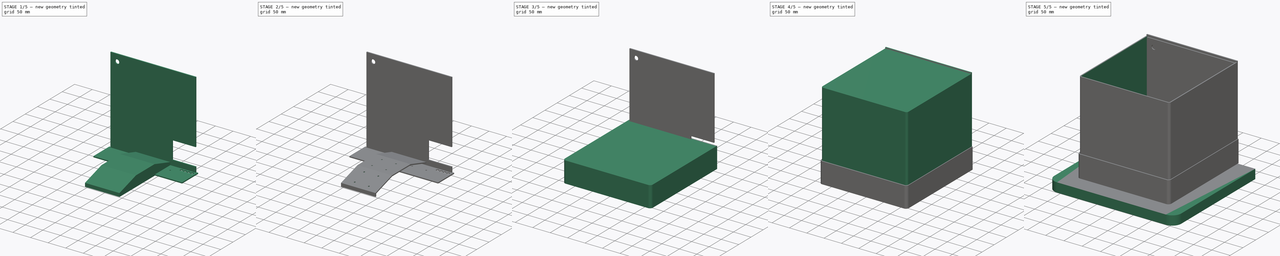
[diagram: build sequence overview — one tinted view per stage of 5, left to right]
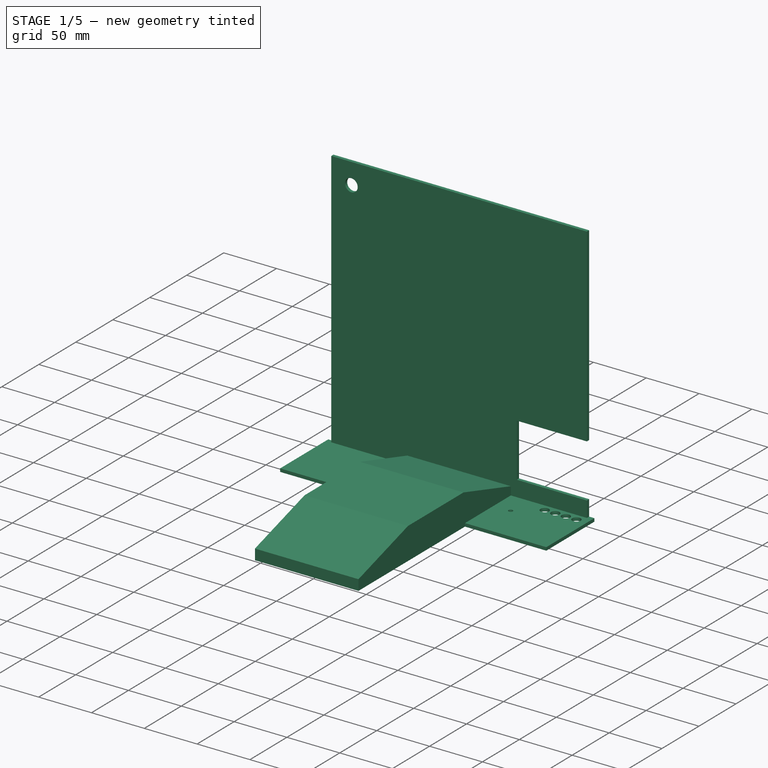
[diagram: stage 1 of 5 — iso view after this stage's code; geometry added in this stage tinted green]
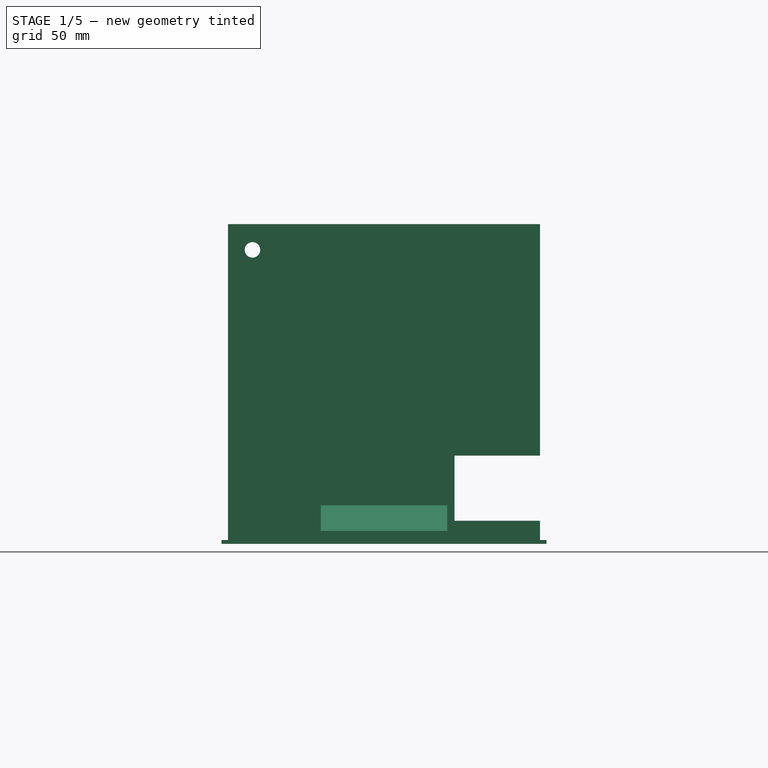
[diagram: stage 1 of 5 — front view after this stage's code; geometry added in this stage tinted green]
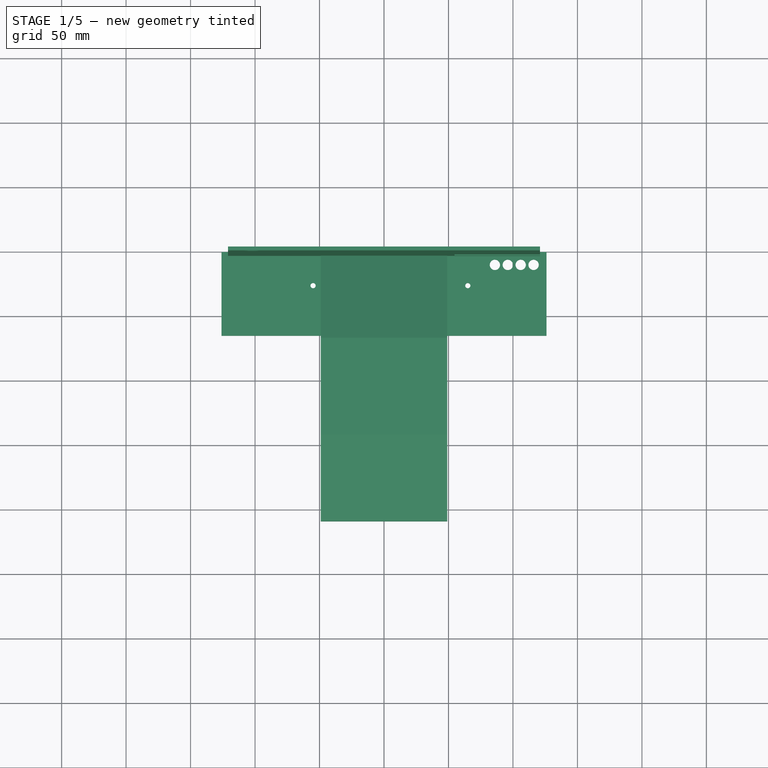
[diagram: stage 1 of 5 — top view after this stage's code; geometry added in this stage tinted green]
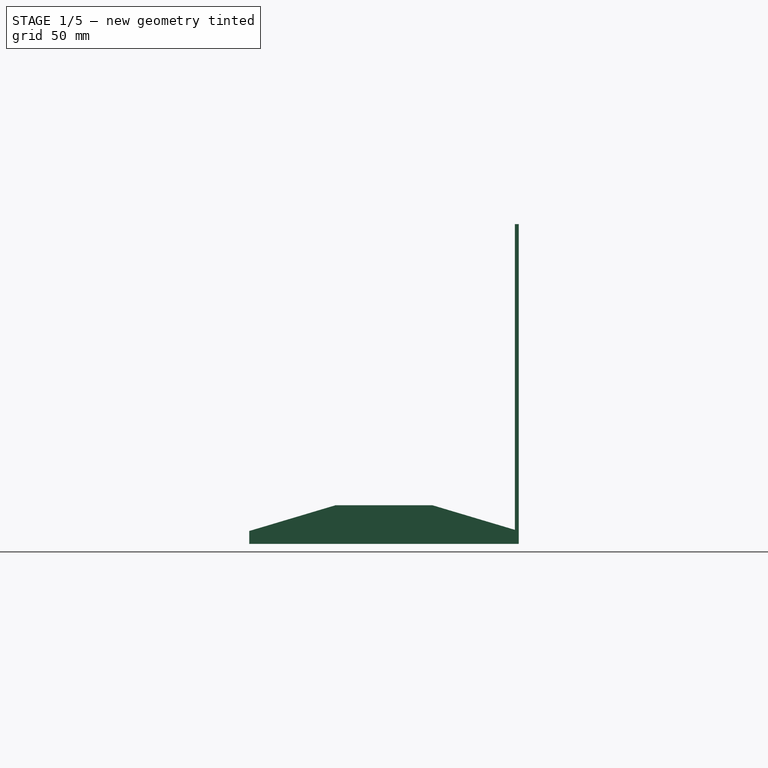
[diagram: stage 1 of 5 — right view after this stage's code; geometry added in this stage tinted green]
FCSTD DOCUMENT  (FreeCAD 0.17R13541 (Git))
Label: Acuario Libre
License: All rights reserved
LicenseURL: http://en.wikipedia.org/wiki/All_rights_reserved
objects: Sketcher::SketchObject×16, PartDesign::Body×14, App::Part×14, PartDesign::Pad×10, App::DocumentObjectGroup×8, PartDesign::Pocket×6, PartDesign::Fillet×4, PartDesign::Thickness×3, Spreadsheet::Sheet×1
note: 69 computed .brp shape members not serialized (recipe doc carries the construction recipe); baked Part::Feature solids carry a one-line shape summary decoded from their .brp

FEATURE [PartDesign::Body] Body005  label="Acuario Tapa trasera001"
  Group = -> [Sketch003,Pad003]
  Origin = -> Origin014
  Tip = -> Pad003
FEATURE [App::Part] Part004  label="Acuario Tapa trasera"
  Group = -> [Body005]
  License = CC BY 3.0
  LicenseURL = http://creativecommons.org/licenses/by/3.0/
  Origin = -> Origin006
  expr: Placement.Base.y = 0
FEATURE [Sketcher::SketchObject] Sketch004
  MapMode = 5
  Placement = pos=(0,0,0) rot=(1,0,0;1.5708rad)
  Support = -> [XZ_Plane013]
  expr: Constraints[11] = Spreadsheet.acuariofrente - 2 * Spreadsheet.acuarioespesor
  expr: Constraints[10] = Spreadsheet.acuarioalto - 2
  sketch-geometry (4):
    g0: LineSegment StartX=-121 StartY=248 StartZ=0 EndX=121 EndY=248 EndZ=0
    g1: LineSegment StartX=121 StartY=248 StartZ=0 EndX=121 EndY=0 EndZ=0
    g2: LineSegment StartX=121 StartY=0 StartZ=0 EndX=-121 EndY=0 EndZ=0
    g3: LineSegment StartX=-121 StartY=0 StartZ=0 EndX=-121 EndY=248 EndZ=0
  constraints (12):
    c: Coincident(g0,g1)
    c: Coincident(g1,g2)
    c: Coincident(g2,g3)
    c: Coincident(g3,g0)
    c: Horizontal(g0)
    c: Horizontal(g2)
    c: Vertical(g1)
    c: Vertical(g3)
    c: PointOnObject(g1,g-1)
    c: Symmetric(g0,g0,g-2)
    c: DistanceY(g3,g3) = 248
    c: DistanceX(g0,g0) = 242
FEATURE [PartDesign::Pad] Pad004
  Length = 3
  Length2 = 100
  Placement = pos=(0,0,0) rot=(1,0,0;1.5708rad)
  Profile = -> Sketch004
  Refine = true
  Type = 0
  expr: Length = Spreadsheet.acuarioespesor
FEATURE [PartDesign::Body] Body011  label="Tapa trasera001"
  Group = -> [Sketch007,Pad007]
  Origin = -> Origin025
  Tip = -> Pad007
FEATURE [App::Part] Part011  label="Tapa trasera"
  Group = -> [Body011]
  License = CC BY 3.0
  LicenseURL = http://creativecommons.org/licenses/by/3.0/
  Origin = -> Origin020
  Placement = pos=(0,0,238) rot=(0,0,1;0rad)
  expr: Placement.Base.z = Spreadsheet.acuarioalto - Spreadsheet.tapapestana
FEATURE [Sketcher::SketchObject] Sketch009
  MapMode = 5
  Placement = pos=(0,0,0) rot=(0.57735,0.57735,0.57735;2.0944rad)
  Support = -> [YZ_Plane027]
  expr: Constraints[16] = Spreadsheet.filtrolargo + 25
  expr: Constraints[15] = Spreadsheet.tapaprofundidad - Spreadsheet.acuariofiltro
  sketch-geometry (6):
    g0: LineSegment StartX=0 StartY=0 StartZ=0 EndX=-209 EndY=0 EndZ=0
    g1: LineSegment StartX=-209 StartY=0 StartZ=0 EndX=-209 EndY=10 EndZ=0
    g2: LineSegment StartX=-209 StartY=10 StartZ=0 EndX=-142 EndY=30 EndZ=0
    g3: LineSegment StartX=-142 StartY=30 StartZ=0 EndX=-67 EndY=30 EndZ=0
    g4: LineSegment StartX=-67 StartY=30 StartZ=0 EndX=0 EndY=10 EndZ=0
    g5: LineSegment StartX=0 StartY=10 StartZ=0 EndX=0 EndY=0 EndZ=0
  constraints (17):
    c: Coincident(g-1,g0)
    c: PointOnObject(g0,g-1)
    c: Coincident(g0,g1)
    c: Vertical(g1)
    c: Coincident(g1,g2)
    c: Coincident(g2,g3)
    c: Horizontal(g3)
    c: Coincident(g3,g4)
    c: Coincident(g4,g5)
    c: Coincident(g5,g0)
    c: Vertical(g5)
    c: Equal(g4,g2)
    c: Equal(g1,g5)
    c: DistanceY(g1,g1) = 10
    c: DistanceY(g0,g2) = 30
    c: DistanceX(g0,g0) = 209
    c: DistanceX(g3,g3) = 75
FEATURE [PartDesign::Pad] Pad009
  Length = 98
  Length2 = 100
  Midplane = true
  Placement = pos=(0,0,0) rot=(0.57735,0.57735,0.57735;2.0944rad)
  Profile = -> Sketch009
  Refine = true
  Type = 0
  expr: Length = Spreadsheet.luzancho
FEATURE [PartDesign::Body] Body013
  Group = -> [Sketch009,Pad009,Thickness002,Sketch010,Pocket,Sketch011,Pocket001,Sketch012,Pocket002,Sketch013,Pocket003]
  Origin = -> Origin027
  Tip = -> Pocket003
FEATURE [App::Part] Part012  label="Tapa soporte luz"
  Group = -> [Body013]
  License = CC BY 3.0
  LicenseURL = http://creativecommons.org/licenses/by/3.0/
  Origin = -> Origin021
  Placement = pos=(0,-59,298) rot=(0,0,1;0rad)
  expr: Placement.Base.y = -Spreadsheet.acuariofiltro
  expr: Placement.Base.z = Spreadsheet.acuarioalto + Spreadsheet.tapaalto - Spreadsheet.tapapestana
FEATURE [Sketcher::SketchObject] Sketch016
  MapMode = 5
  Support = -> [XY_Plane026]
  expr: Constraints[11] = Spreadsheet.acuariofiltro + 2 * Spreadsheet.tapaespesor
  expr: Constraints[9] = Spreadsheet.tapafrente
  sketch-geometry (4):
    g0: LineSegment StartX=-126 StartY=0 StartZ=0 EndX=126 EndY=0 EndZ=0
    g1: LineSegment StartX=126 StartY=0 StartZ=0 EndX=126 EndY=-65 EndZ=0
    g2: LineSegment StartX=126 StartY=-65 StartZ=0 EndX=-126 EndY=-65 EndZ=0
    g3: LineSegment StartX=-126 StartY=-65 StartZ=0 EndX=-126 EndY=0 EndZ=0
  constraints (12):
    c: Coincident(g0,g1)
    c: Coincident(g1,g2)
    c: Coincident(g2,g3)
    c: Coincident(g3,g0)
    c: Horizontal(g0)
    c: Horizontal(g2)
    c: Vertical(g1)
    c: Vertical(g3)
    c: PointOnObject(g0,g-1)
    c: DistanceX(g0,g0) = 252
    c: Symmetric(g0,g0,g-2)
    c: DistanceY(g3,g3) = 65
FEATURE [PartDesign::Pad] Pad010
  Length = 3
  Length2 = 100
  Profile = -> Sketch016
  Refine = true
  Type = 0
  expr: Length = Spreadsheet.tapaespesor
FEATURE [Sketcher::SketchObject] Sketch017
  ExternalGeometry = -> [Pad010]
  MapMode = 5
  Placement = pos=(0,0,3) rot=(0,0,1;0rad)
  Support = -> [Pad010]
  expr: Constraints[85] = Spreadsheet.tapafrente / 2 - 40
  expr: Constraints[67] = Spreadsheet.filtrodiabarrenos / 2
  expr: Constraints[43] = Spreadsheet.filtrolargo / 2
  expr: Constraints[42] = Spreadsheet.filtrodistanciabarrenos
  sketch-geometry (35):
    g0: LineSegment [constr] StartX=-55 StartY=13.9 StartZ=0 EndX=-15 EndY=13.9 EndZ=0
    g1: LineSegment [constr] StartX=-15 StartY=13.9 StartZ=0 EndX=-15 EndY=-26.1 EndZ=0
    g2: LineSegment [constr] StartX=-15 StartY=-26.1 StartZ=0 EndX=-55 EndY=-26.1 EndZ=0
    g3: LineSegment [constr] StartX=-55 StartY=-26.1 StartZ=0 EndX=-55 EndY=13.9 EndZ=0
    g4: LineSegment [constr] StartX=-20 StartY=13.9 StartZ=0 EndX=20 EndY=13.9 EndZ=0
    g5: LineSegment [constr] StartX=20 StartY=13.9 StartZ=0 EndX=20 EndY=-26.1 EndZ=0
    g6: LineSegment [constr] StartX=20 StartY=-26.1 StartZ=0 EndX=-20 EndY=-26.1 EndZ=0
    g7: LineSegment [constr] StartX=-20 StartY=-26.1 StartZ=0 EndX=-20 EndY=13.9 EndZ=0
    g8: LineSegment [constr] StartX=25 StartY=13.9 StartZ=0 EndX=65 EndY=13.9 EndZ=0
    g9: LineSegment [constr] StartX=65 StartY=13.9 StartZ=0 EndX=65 EndY=-26.1 EndZ=0
    g10: LineSegment [constr] StartX=65 StartY=-26.1 StartZ=0 EndX=25 EndY=-26.1 EndZ=0
    g11: LineSegment [constr] StartX=25 StartY=-26.1 StartZ=0 EndX=25 EndY=13.9 EndZ=0
    g12: LineSegment [constr] StartX=126 StartY=-65 StartZ=0 EndX=65 EndY=-26.1 EndZ=0
    g13: LineSegment [constr] StartX=-55 StartY=13.9 StartZ=0 EndX=-126 EndY=0 EndZ=0
    g14: LineSegment [constr] StartX=-15 StartY=13.9 StartZ=0 EndX=-20 EndY=13.9 EndZ=0
    g15: LineSegment [constr] StartX=20 StartY=13.9 StartZ=0 EndX=25 EndY=13.9 EndZ=0
    g16: Circle CenterX=-55 CenterY=13.9 CenterZ=0 NormalX=0 NormalY=0 NormalZ=1 AngleXU=0 Radius=2
    g17: Circle CenterX=-55 CenterY=-26.1 CenterZ=0 NormalX=0 NormalY=0 NormalZ=1 AngleXU=0 Radius=2
    g18: Circle CenterX=-15 CenterY=-26.1 CenterZ=0 NormalX=0 NormalY=0 NormalZ=1 AngleXU=0 Radius=2
    g19: Circle CenterX=-20 CenterY=-26.1 CenterZ=0 NormalX=0 NormalY=0 NormalZ=1 AngleXU=0 Radius=2
    g20: Circle CenterX=20 CenterY=-26.1 CenterZ=0 NormalX=0 NormalY=0 NormalZ=1 AngleXU=0 Radius=2
    g21: Circle CenterX=25 CenterY=-26.1 CenterZ=0 NormalX=0 NormalY=0 NormalZ=1 AngleXU=0 Radius=2
    g22: Circle CenterX=65 CenterY=-26.1 CenterZ=0 NormalX=0 NormalY=0 NormalZ=1 AngleXU=0 Radius=2
    g23: Circle CenterX=65 CenterY=13.9 CenterZ=0 NormalX=0 NormalY=0 NormalZ=1 AngleXU=0 Radius=2
    g24: Circle CenterX=25 CenterY=13.9 CenterZ=0 NormalX=0 NormalY=0 NormalZ=1 AngleXU=0 Radius=2
    g25: Circle CenterX=20 CenterY=13.9 CenterZ=0 NormalX=0 NormalY=0 NormalZ=1 AngleXU=0 Radius=2
    g26: Circle CenterX=-20 CenterY=13.9 CenterZ=0 NormalX=0 NormalY=0 NormalZ=1 AngleXU=0 Radius=2
    g27: Circle CenterX=-15 CenterY=13.9 CenterZ=0 NormalX=0 NormalY=0 NormalZ=1 AngleXU=0 Radius=2
    g28: Circle CenterX=86 CenterY=-10 CenterZ=0 NormalX=0 NormalY=0 NormalZ=1 AngleXU=0 Radius=4
    g29: Circle CenterX=96 CenterY=-10 CenterZ=0 NormalX=0 NormalY=0 NormalZ=1 AngleXU=0 Radius=4
    g30: Circle CenterX=106 CenterY=-10 CenterZ=0 NormalX=0 NormalY=0 NormalZ=1 AngleXU=0 Radius=4
    g31: Circle CenterX=116 CenterY=-10 CenterZ=0 NormalX=0 NormalY=0 NormalZ=1 AngleXU=0 Radius=4
    g32: LineSegment [constr] StartX=86 StartY=-10 StartZ=0 EndX=96 EndY=-10 EndZ=0
    g33: LineSegment [constr] StartX=96 StartY=-10 StartZ=0 EndX=106 EndY=-10 EndZ=0
    g34: LineSegment [constr] StartX=106 StartY=-10 StartZ=0 EndX=116 EndY=-10 EndZ=0
  constraints (86):
    c: Coincident(g0,g1)
    c: Coincident(g1,g2)
    c: Coincident(g2,g3)
    c: Coincident(g3,g0)
    c: Horizontal(g0)
    c: Horizontal(g2)
    c: Vertical(g1)
    c: Vertical(g3)
    c: Coincident(g4,g5)
    c: Coincident(g5,g6)
    c: Coincident(g6,g7)
    c: Coincident(g7,g4)
    c: Horizontal(g4)
    c: Horizontal(g6)
    c: Vertical(g5)
    c: Vertical(g7)
    c: Coincident(g8,g9)
    c: Coincident(g9,g10)
    c: Coincident(g10,g11)
    c: Coincident(g11,g8)
    c: Horizontal(g8)
    c: Horizontal(g10)
    c: Vertical(g9)
    c: Vertical(g11)
    c: Coincident(g12,g-4)
    c: Coincident(g12,g9)
    c: Coincident(g13,g0)
    c: Coincident(g13,g-3)
    c: Coincident(g14,g0)
    c: Coincident(g14,g4)
    c: Coincident(g15,g4)
    c: Coincident(g15,g8)
    c: Equal(g12,g13)
    c: Equal(g8,g4)
    c: Equal(g4,g0)
    c: Horizontal(g14)
    c: Horizontal(g15)
    c: Equal(g14,g15)
    c: Symmetric(g4,g4,g-2)
    c: Equal(g11,g7)
    c: Equal(g7,g3)
    c: Equal(g0,g3)
    c: DistanceX(g0,g0) = 40
    c: DistanceX(g-1,g8) = 25
    c: Coincident(g16,g0)
    c: Coincident(g17,g2)
    c: Coincident(g18,g1)
    c: Coincident(g19,g6)
    c: Coincident(g20,g5)
    c: Coincident(g21,g10)
    c: Coincident(g22,g9)
    c: Coincident(g23,g8)
    c: Coincident(g24,g8)
    c: Coincident(g25,g4)
    c: Coincident(g26,g4)
    c: Coincident(g27,g0)
    c: Equal(g20,g21)
    c: Equal(g21,g22)
    c: Equal(g22,g23)
    c: Equal(g23,g24)
    c: Equal(g24,g25)
    c: Equal(g25,g26)
    c: Equal(g26,g27)
    c: Equal(g27,g16)
    c: Equal(g16,g17)
    c: Equal(g17,g18)
    c: Equal(g18,g19)
    c: Radius(g16) = 2
    c: Coincident(g32,g28)
    c: Coincident(g32,g29)
    c: Horizontal(g32)
    c: Coincident(g32,g33)
    c: Coincident(g33,g30)
    c: Horizontal(g33)
    c: Coincident(g33,g34)
    c: Coincident(g34,g31)
    c: Equal(g34,g33)
    c: Equal(g33,g32)
    c: Horizontal(g34)
    c: Equal(g31,g30)
    c: Equal(g30,g29)
    c: Equal(g29,g28)
    c: Radius(g28) = 4
    c: DistanceX(g32,g32) = 10
    c: DistanceY(g28,g-1) = 10
    c: DistanceX(g-1,g28) = 86
FEATURE [PartDesign::Pocket] Pocket006
  BaseFeature = -> Pad010
  Length = 5
  Length2 = 100
  Profile = -> Sketch017
  Refine = true
  Type = 1
FEATURE [PartDesign::Body] Body012  label="Tapa soporte luz filtro001"
  Group = -> [Sketch016,Pad010,Sketch017,Pocket006]
  Origin = -> Origin026
  Tip = -> Pocket006
FEATURE [App::Part] Part013  label="Tapa soporte luz filtro"
  Group = -> [Body012]
  License = CC BY 3.0
  LicenseURL = http://creativecommons.org/licenses/by/3.0/
  Origin = -> Origin022
  Placement = pos=(0,3,298) rot=(0,0,1;0rad)
  expr: Placement.Base.y = Spreadsheet.tapaespesor
  expr: Placement.Base.z = Spreadsheet.acuarioalto + Spreadsheet.tapaalto - Spreadsheet.tapapestana
FEATURE [App::DocumentObjectGroup] Group003  label="Tapa Acrilico"
  Group = -> [Part009,Part010,Part011,Part012,Part013]
FEATURE [Sketcher::SketchObject] Sketch018
  MapMode = 5
  Placement = pos=(0,-3,0) rot=(1,0,0;1.5708rad)
  Support = -> [Pad004]
  expr: Constraints[81] = Spreadsheet.acuarioalto - 22
  expr: Constraints[80] = Spreadsheet.acuariofrente / 2 - 22
  sketch-geometry (41):
    g0: Circle CenterX=-102 CenterY=228 CenterZ=0 NormalX=0 NormalY=0 NormalZ=1 AngleXU=0 Radius=6
    g1: LineSegment StartX=156.805 StartY=171.992 StartZ=0 EndX=165.969 EndY=171.992 EndZ=0
    g2: LineSegment StartX=165.969 StartY=171.992 StartZ=0 EndX=165.969 EndY=119.187 EndZ=0
    g3: LineSegment StartX=165.969 StartY=119.187 StartZ=0 EndX=156.805 EndY=119.187 EndZ=0
    g4: LineSegment StartX=156.805 StartY=119.187 StartZ=0 EndX=156.805 EndY=171.992 EndZ=0
    g5: LineSegment StartX=174.261 StartY=171.556 StartZ=0 EndX=182.989 EndY=171.556 EndZ=0
    g6: LineSegment StartX=182.989 StartY=171.556 StartZ=0 EndX=182.989 EndY=120.496 EndZ=0
    g7: LineSegment StartX=182.989 StartY=120.496 StartZ=0 EndX=174.261 EndY=120.496 EndZ=0
    g8: LineSegment StartX=174.261 StartY=120.496 StartZ=0 EndX=174.261 EndY=171.556 EndZ=0
    g9: LineSegment StartX=189.971 StartY=171.119 StartZ=0 EndX=202.191 EndY=171.119 EndZ=0
    g10: LineSegment StartX=202.191 StartY=171.119 StartZ=0 EndX=202.191 EndY=118.751 EndZ=0
    g11: LineSegment StartX=202.191 StartY=118.751 StartZ=0 EndX=189.971 EndY=118.751 EndZ=0
    g12: LineSegment StartX=189.971 StartY=118.751 StartZ=0 EndX=189.971 EndY=171.119 EndZ=0
    g13: LineSegment StartX=208.301 StartY=169.374 StartZ=0 EndX=219.211 EndY=169.374 EndZ=0
    g14: LineSegment StartX=219.211 StartY=169.374 StartZ=0 EndX=219.211 EndY=117.878 EndZ=0
    g15: LineSegment StartX=219.211 StartY=117.878 StartZ=0 EndX=208.301 EndY=117.878 EndZ=0
    g16: LineSegment StartX=208.301 StartY=117.878 StartZ=0 EndX=208.301 EndY=169.374 EndZ=0
    g17: LineSegment StartX=226.193 StartY=168.501 StartZ=0 EndX=236.231 EndY=168.501 EndZ=0
    g18: LineSegment StartX=236.231 StartY=168.501 StartZ=0 EndX=236.231 EndY=117.878 EndZ=0
    g19: LineSegment StartX=236.231 StartY=117.878 StartZ=0 EndX=226.193 EndY=117.878 EndZ=0
    g20: LineSegment StartX=226.193 StartY=117.878 StartZ=0 EndX=226.193 EndY=168.501 EndZ=0
    g21: LineSegment StartX=54.6427 StartY=68.4789 StartZ=0 EndX=171.206 EndY=68.4789 EndZ=0
    g22: LineSegment StartX=171.206 StartY=68.4789 StartZ=0 EndX=171.206 EndY=17.9405 EndZ=0
    g23: LineSegment StartX=171.206 StartY=17.9405 StartZ=0 EndX=54.6427 EndY=17.9405 EndZ=0
    g24: LineSegment StartX=54.6427 StartY=17.9405 StartZ=0 EndX=54.6427 EndY=68.4789 EndZ=0
    g25: LineSegment StartX=177.752 StartY=61.5812 StartZ=0 EndX=188.662 EndY=61.5812 EndZ=0
    g26: LineSegment StartX=188.662 StartY=61.5812 StartZ=0 EndX=188.662 EndY=19.2497 EndZ=0
    g27: LineSegment StartX=188.662 StartY=19.2497 StartZ=0 EndX=177.752 EndY=19.2497 EndZ=0
    g28: LineSegment StartX=177.752 StartY=19.2497 StartZ=0 EndX=177.752 EndY=61.5812 EndZ=0
    g29: LineSegment StartX=194.772 StartY=60.7084 StartZ=0 EndX=207.428 EndY=60.7084 EndZ=0
    g30: LineSegment StartX=207.428 StartY=60.7084 StartZ=0 EndX=207.428 EndY=15.7585 EndZ=0
    g31: LineSegment StartX=207.428 StartY=15.7585 StartZ=0 EndX=194.772 EndY=15.7585 EndZ=0
    g32: LineSegment StartX=194.772 StartY=15.7585 StartZ=0 EndX=194.772 EndY=60.7084 EndZ=0
    g33: LineSegment StartX=215.283 StartY=58.09 StartZ=0 EndX=223.138 EndY=58.09 EndZ=0
    g34: LineSegment StartX=223.138 StartY=58.09 StartZ=0 EndX=223.138 EndY=13.5765 EndZ=0
    g35: LineSegment StartX=223.138 StartY=13.5765 StartZ=0 EndX=215.283 EndY=13.5765 EndZ=0
    g36: LineSegment StartX=215.283 StartY=13.5765 StartZ=0 EndX=215.283 EndY=58.09 EndZ=0
    g37: LineSegment StartX=231.43 StartY=56.3443 StartZ=0 EndX=237.976 EndY=56.3443 EndZ=0
    g38: LineSegment StartX=237.976 StartY=56.3443 StartZ=0 EndX=237.976 EndY=11.3944 EndZ=0
    g39: LineSegment StartX=237.976 StartY=11.3944 StartZ=0 EndX=231.43 EndY=11.3944 EndZ=0
    g40: LineSegment StartX=231.43 StartY=11.3944 StartZ=0 EndX=231.43 EndY=56.3443 EndZ=0
  constraints (83):
    c: Coincident(g1,g2)
    c: Coincident(g2,g3)
    c: Coincident(g3,g4)
    c: Coincident(g4,g1)
    c: Horizontal(g1)
    c: Horizontal(g3)
    c: Vertical(g2)
    c: Vertical(g4)
    c: Coincident(g5,g6)
    c: Coincident(g6,g7)
    c: Coincident(g7,g8)
    c: Coincident(g8,g5)
    c: Horizontal(g5)
    c: Horizontal(g7)
    c: Vertical(g6)
    c: Vertical(g8)
    c: Coincident(g9,g10)
    c: Coincident(g10,g11)
    c: Coincident(g11,g12)
    c: Coincident(g12,g9)
    c: Horizontal(g9)
    c: Horizontal(g11)
    c: Vertical(g10)
    c: Vertical(g12)
    c: Coincident(g13,g14)
    c: Coincident(g14,g15)
    c: Coincident(g15,g16)
    c: Coincident(g16,g13)
    c: Horizontal(g13)
    c: Horizontal(g15)
    c: Vertical(g14)
    c: Vertical(g16)
    c: Coincident(g17,g18)
    c: Coincident(g18,g19)
    c: Coincident(g19,g20)
    c: Coincident(g20,g17)
    c: Horizontal(g17)
    c: Horizontal(g19)
    c: Vertical(g18)
    c: Vertical(g20)
    c: Coincident(g21,g22)
    c: Coincident(g22,g23)
    c: Coincident(g23,g24)
    c: Coincident(g24,g21)
    c: Horizontal(g21)
    c: Horizontal(g23)
    c: Vertical(g22)
    c: Vertical(g24)
    c: Coincident(g25,g26)
    c: Coincident(g26,g27)
    c: Coincident(g27,g28)
    c: Coincident(g28,g25)
    c: Horizontal(g25)
    c: Horizontal(g27)
    c: Vertical(g26)
    c: Vertical(g28)
    c: Coincident(g29,g30)
    c: Coincident(g30,g31)
    c: Coincident(g31,g32)
    c: Coincident(g32,g29)
    c: Horizontal(g29)
    c: Horizontal(g31)
    c: Vertical(g30)
    c: Vertical(g32)
    c: Coincident(g33,g34)
    c: Coincident(g34,g35)
    c: Coincident(g35,g36)
    c: Coincident(g36,g33)
    c: Horizontal(g33)
    c: Horizontal(g35)
    c: Vertical(g34)
    c: Vertical(g36)
    c: Coincident(g37,g38)
    c: Coincident(g38,g39)
    c: Coincident(g39,g40)
    c: Coincident(g40,g37)
    c: Horizontal(g37)
    c: Horizontal(g39)
    c: Vertical(g38)
    c: Vertical(g40)
    c: DistanceX(g0,g-1) = 102
    c: DistanceY(g-1,g0) = 228
    c: Radius(g0) = 6
FEATURE [PartDesign::Pocket] Pocket007
  BaseFeature = -> Pad004
  Length = 5
  Length2 = 100
  Placement = pos=(0,0,0) rot=(1,0,0;1.5708rad)
  Profile = -> Sketch018
  Refine = true
  Type = 0
FEATURE [PartDesign::Body] Body004  label="Acuario Tapa filtro001"
  Group = -> [Sketch004,Pad004,Sketch018,Pocket007]
  Origin = -> Origin013
  Tip = -> Pocket007
FEATURE [App::Part] Part005  label="Acuario Tapa filtro"
  Group = -> [Body004]
  License = CC BY 3.0
  LicenseURL = http://creativecommons.org/licenses/by/3.0/
  Origin = -> Origin007
  Placement = pos=(0,-59,3) rot=(0,0,1;0rad)
  expr: Placement.Base.z = Spreadsheet.acuarioespesor
  expr: Placement.Base.y = -Spreadsheet.acuariofiltro
FEATURE [App::DocumentObjectGroup] Group002  label="Acuario"
  Group = -> [Part002,Part003,Part005,Part006,Part007,Part008,Part004]
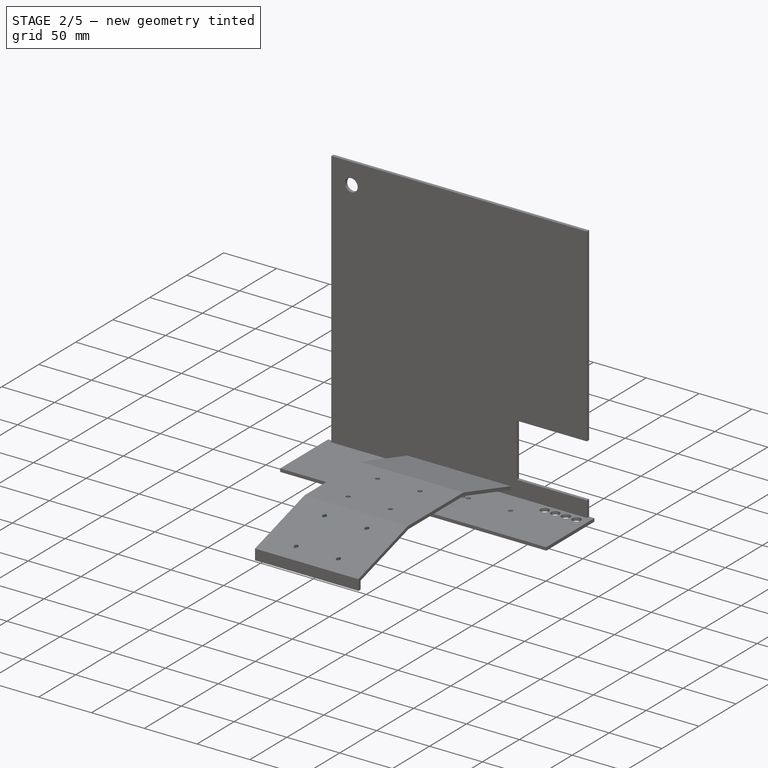
[diagram: stage 2 of 5 — iso view after this stage's code; geometry added in this stage tinted green]
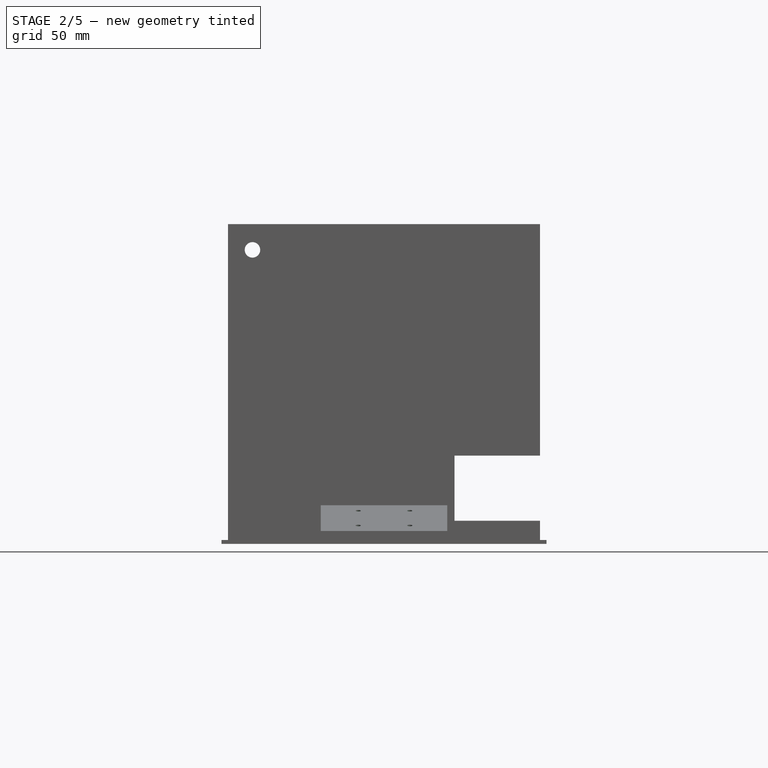
[diagram: stage 2 of 5 — front view after this stage's code; geometry added in this stage tinted green]
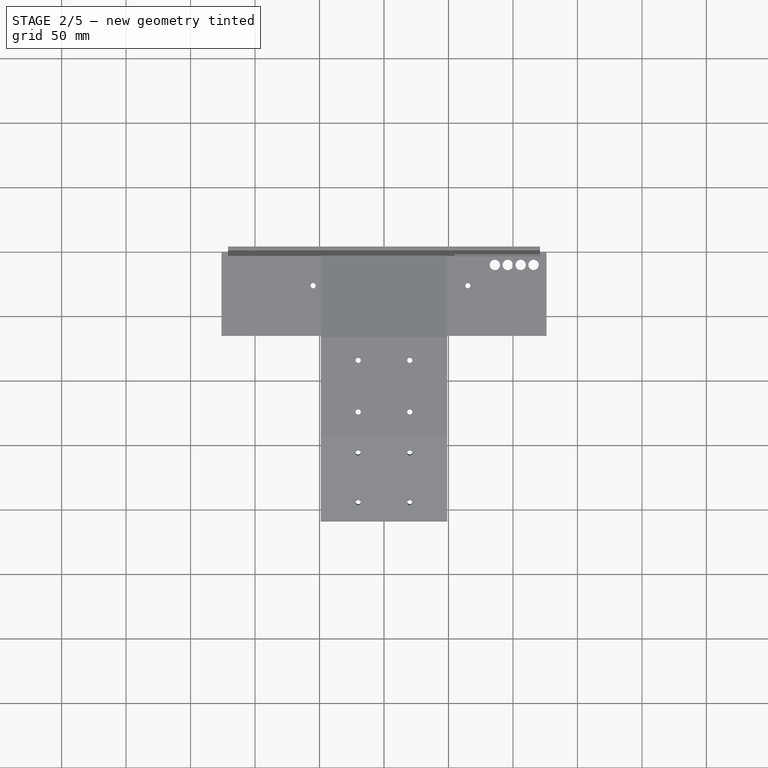
[diagram: stage 2 of 5 — top view after this stage's code; geometry added in this stage tinted green]
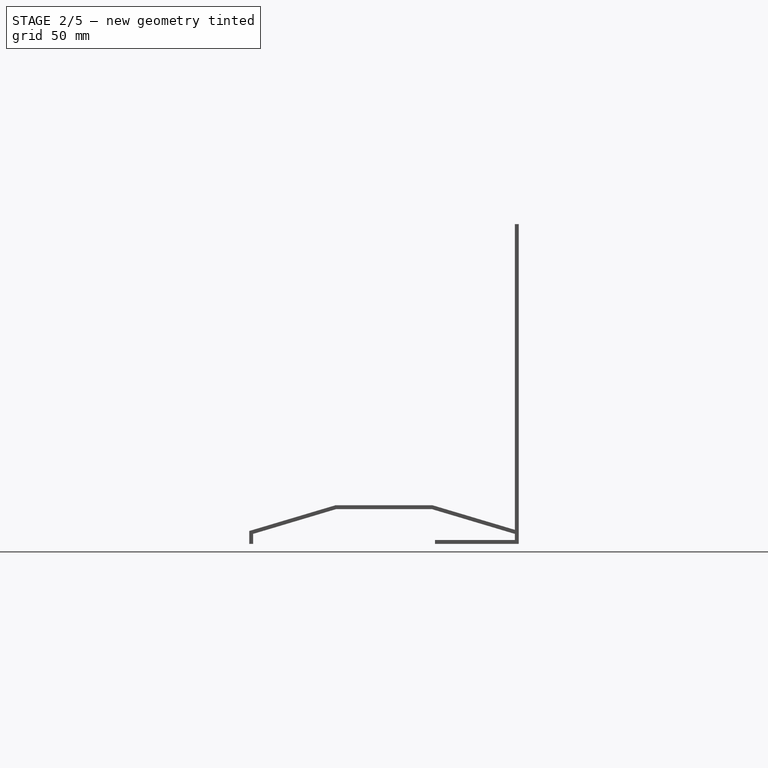
[diagram: stage 2 of 5 — right view after this stage's code; geometry added in this stage tinted green]
FEATURE [PartDesign::Thickness] Thickness002
  Base = -> Pad009 [Face8,Face1,Face7]
  BaseFeature = -> Pad009
  Join = 0
  Mode = 0
  Reversed = true
  Value = 3
FEATURE [Sketcher::SketchObject] Sketch010
  ExternalGeometry = -> [Thickness002]
  MapMode = 5
  Placement = pos=(49,-6e-12,6e-12) rot=(0.57735,0.57735,0.57735;2.0944rad)
  Support = -> [Thickness002]
  sketch-geometry (4):
    g0: LineSegment StartX=0 StartY=0 StartZ=0 EndX=-3 EndY=0 EndZ=0
    g1: LineSegment StartX=-3 StartY=0 StartZ=0 EndX=-3 EndY=3 EndZ=0
    g2: LineSegment StartX=-3 StartY=3 StartZ=0 EndX=0 EndY=3 EndZ=0
    g3: LineSegment StartX=0 StartY=3 StartZ=0 EndX=0 EndY=0 EndZ=0
  constraints (11):
    c: Coincident(g0,g1)
    c: Coincident(g1,g2)
    c: Coincident(g2,g3)
    c: Coincident(g3,g0)
    c: Horizontal(g0)
    c: Horizontal(g2)
    c: Vertical(g1)
    c: Vertical(g3)
    c: Coincident(g0,g-1)
    c: Coincident(g0,g-3)
    c: Equal(g3,g0)
FEATURE [PartDesign::Pocket] Pocket
  BaseFeature = -> Thickness002
  Length = 5
  Length2 = 100
  Profile = -> Sketch010
  Refine = true
  Type = 1
FEATURE [Sketcher::SketchObject] Sketch011
  ExternalGeometry = -> [Pocket]
  MapMode = 5
  Placement = pos=(-1e-11,-19.8405,66.4655) rot=(1,0,0;0.290087rad)
  Support = -> [Pocket]
  expr: Constraints[23] = Spreadsheet.luzdistanciabarrenos
  expr: Constraints[22] = Spreadsheet.luzdiabarrenos / 2
  sketch-geometry (10):
    g0: LineSegment [constr] StartX=-20 StartY=-142.447 StartZ=0 EndX=20 EndY=-142.447 EndZ=0
    g1: LineSegment [constr] StartX=20 StartY=-142.447 StartZ=0 EndX=20 EndY=-182.447 EndZ=0
    g2: LineSegment [constr] StartX=20 StartY=-182.447 StartZ=0 EndX=-20 EndY=-182.447 EndZ=0
    g3: LineSegment [constr] StartX=-20 StartY=-182.447 StartZ=0 EndX=-20 EndY=-142.447 EndZ=0
    g4: Circle CenterX=-20 CenterY=-142.447 CenterZ=0 NormalX=0 NormalY=0 NormalZ=1 AngleXU=0 Radius=2
    g5: Circle CenterX=20 CenterY=-142.447 CenterZ=0 NormalX=0 NormalY=0 NormalZ=1 AngleXU=0 Radius=2
    g6: Circle CenterX=20 CenterY=-182.447 CenterZ=0 NormalX=0 NormalY=0 NormalZ=1 AngleXU=0 Radius=2
    g7: Circle CenterX=-20 CenterY=-182.447 CenterZ=0 NormalX=0 NormalY=0 NormalZ=1 AngleXU=0 Radius=2
    g8: LineSegment [constr] StartX=-49 StartY=-127.486 StartZ=0 EndX=-20 EndY=-142.447 EndZ=0
    g9: LineSegment [constr] StartX=20 StartY=-182.447 StartZ=0 EndX=49 EndY=-197.407 EndZ=0
  constraints (24):
    c: Coincident(g0,g1)
    c: Coincident(g1,g2)
    c: Coincident(g2,g3)
    c: Coincident(g3,g0)
    c: Horizontal(g0)
    c: Horizontal(g2)
    c: Vertical(g1)
    c: Vertical(g3)
    c: Coincident(g5,g0)
    c: Coincident(g6,g1)
    c: Coincident(g7,g2)
    c: Equal(g7,g4)
    c: Equal(g4,g5)
    c: Equal(g5,g6)
    c: Coincident(g8,g-3)
    c: Coincident(g8,g4)
    c: Coincident(g9,g1)
    c: Coincident(g9,g-4)
    c: Equal(g9,g8)
    c: Parallel(g9,g8)
    c: Coincident(g4,g0)
    c: Equal(g1,g0)
    c: Radius(g6) = 2
    c: DistanceX(g2,g2) = 40
FEATURE [PartDesign::Pocket] Pocket001
  BaseFeature = -> Pocket
  Length = 3
  Length2 = 100
  Profile = -> Sketch011
  Refine = true
  Type = 0
  expr: Length = Spreadsheet.tapaespesor
FEATURE [Sketcher::SketchObject] Sketch012
  ExternalGeometry = -> [Pocket001]
  MapMode = 5
  Placement = pos=(-3e-12,3e-12,30) rot=(0,0,1;0rad)
  Support = -> [Pocket001]
  expr: Constraints[20] = Spreadsheet.luzdiabarrenos / 2
  expr: Constraints[13] = Spreadsheet.luzdistanciabarrenos
  sketch-geometry (10):
    g0: LineSegment [constr] StartX=-20 StartY=-84.5 StartZ=0 EndX=20 EndY=-84.5 EndZ=0
    g1: LineSegment [constr] StartX=20 StartY=-84.5 StartZ=0 EndX=20 EndY=-124.5 EndZ=0
    g2: LineSegment [constr] StartX=20 StartY=-124.5 StartZ=0 EndX=-20 EndY=-124.5 EndZ=0
    g3: LineSegment [constr] StartX=-20 StartY=-124.5 StartZ=0 EndX=-20 EndY=-84.5 EndZ=0
    g4: LineSegment [constr] StartX=49 StartY=-67 StartZ=0 EndX=20 EndY=-84.5 EndZ=0
    g5: LineSegment [constr] StartX=-20 StartY=-124.5 StartZ=0 EndX=-49 EndY=-142 EndZ=0
    g6: Circle CenterX=-20 CenterY=-124.5 CenterZ=0 NormalX=0 NormalY=0 NormalZ=1 AngleXU=0 Radius=2
    g7: Circle CenterX=20 CenterY=-124.5 CenterZ=0 NormalX=0 NormalY=0 NormalZ=1 AngleXU=0 Radius=2
    g8: Circle CenterX=-20 CenterY=-84.5 CenterZ=0 NormalX=0 NormalY=0 NormalZ=1 AngleXU=0 Radius=2
    g9: Circle CenterX=20 CenterY=-84.5 CenterZ=0 NormalX=0 NormalY=0 NormalZ=1 AngleXU=0 Radius=2
  constraints (24):
    c: Coincident(g0,g1)
    c: Coincident(g1,g2)
    c: Coincident(g2,g3)
    c: Coincident(g3,g0)
    c: Horizontal(g0)
    c: Horizontal(g2)
    c: Vertical(g1)
    c: Vertical(g3)
    c: Equal(g0,g3)
    c: Coincident(g4,g-4)
    c: Coincident(g4,g0)
    c: Coincident(g5,g2)
    c: Coincident(g5,g-3)
    c: DistanceX(g0,g0) = 40
    c: Equal(g4,g5)
    c: Parallel(g4,g5)
    c: Coincident(g6,g2)
    c: Coincident(g7,g1)
    c: Coincident(g8,g0)
    c: Coincident(g9,g0)
    c: Radius(g9) = 2
    c: Equal(g8,g9)
    c: Equal(g9,g7)
    c: Equal(g7,g6)
FEATURE [PartDesign::Pocket] Pocket002
  BaseFeature = -> Pocket001
  Length = 3
  Length2 = 100
  Profile = -> Sketch012
  Refine = true
  Type = 0
  expr: Length = Spreadsheet.tapaespesor
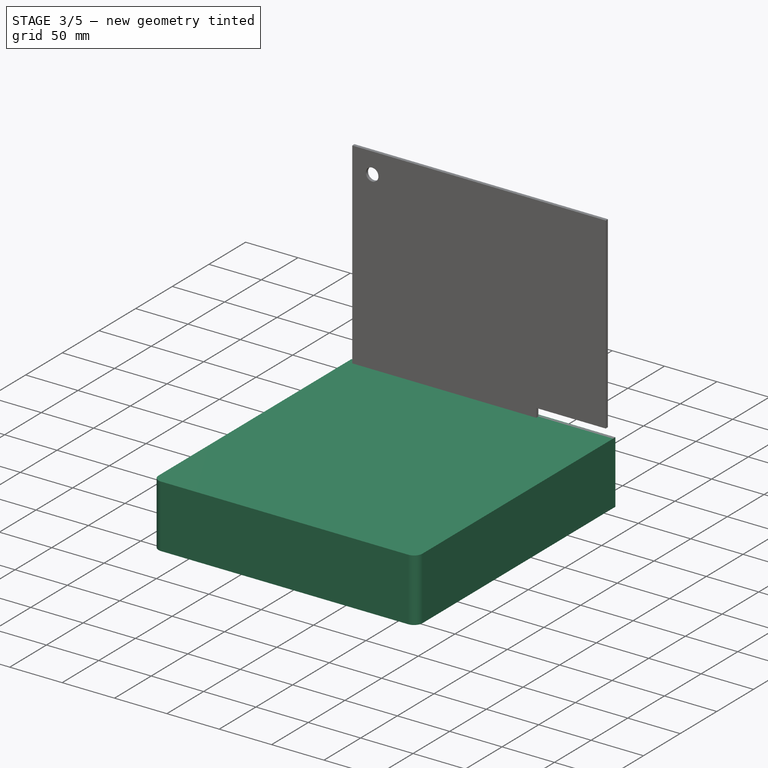
[diagram: stage 3 of 5 — iso view after this stage's code; geometry added in this stage tinted green]
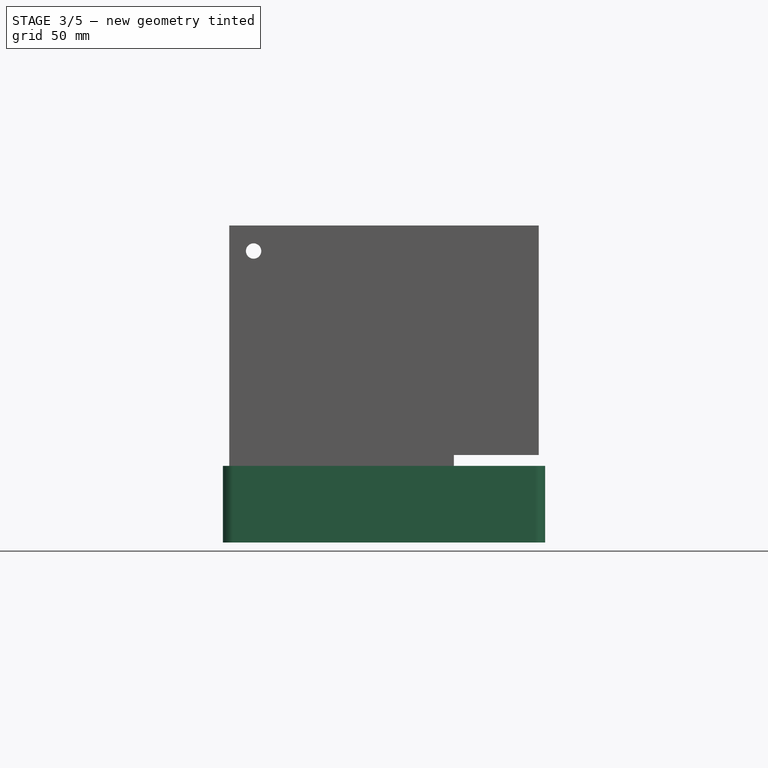
[diagram: stage 3 of 5 — front view after this stage's code; geometry added in this stage tinted green]
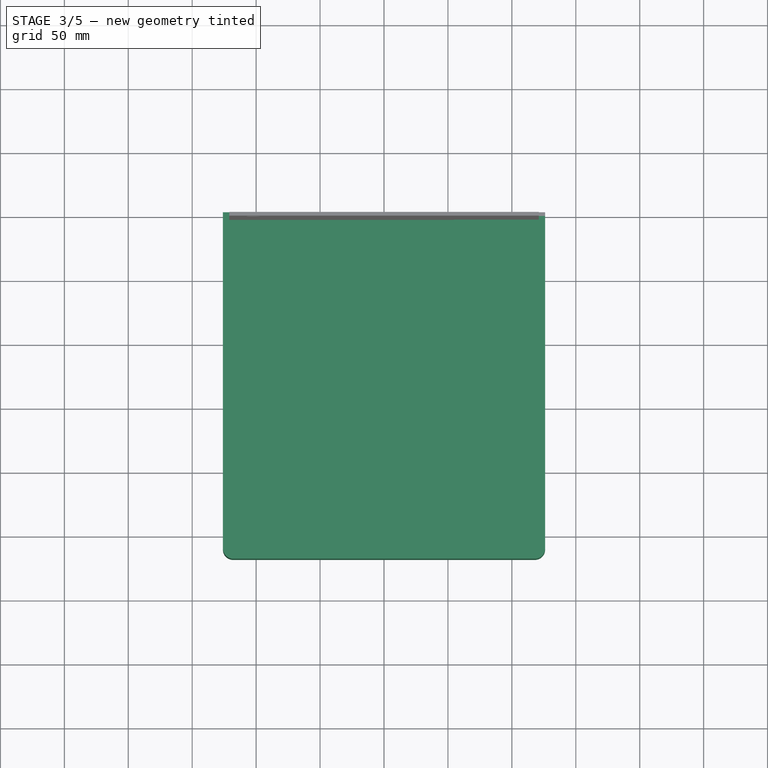
[diagram: stage 3 of 5 — top view after this stage's code; geometry added in this stage tinted green]
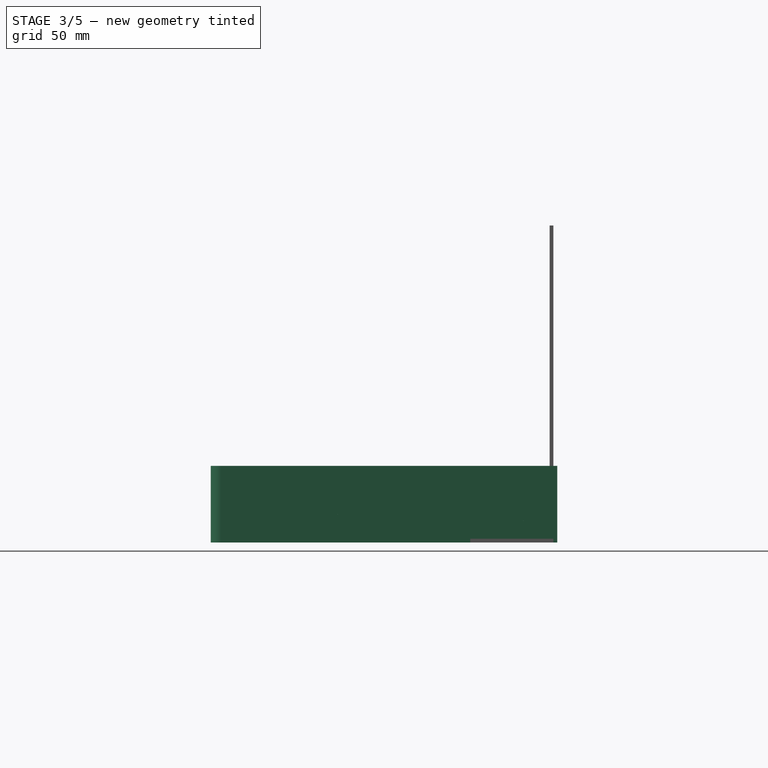
[diagram: stage 3 of 5 — right view after this stage's code; geometry added in this stage tinted green]
FEATURE [Sketcher::SketchObject] Sketch005
  MapMode = 5
  Support = -> [XY_Plane023]
  expr: Constraints[11] = Spreadsheet.tapafrente
  expr: Constraints[10] = Spreadsheet.tapaprofundidad
  sketch-geometry (4):
    g0: LineSegment StartX=-126 StartY=0 StartZ=0 EndX=126 EndY=0 EndZ=0
    g1: LineSegment StartX=126 StartY=0 StartZ=0 EndX=126 EndY=-268 EndZ=0
    g2: LineSegment StartX=126 StartY=-268 StartZ=0 EndX=-126 EndY=-268 EndZ=0
    g3: LineSegment StartX=-126 StartY=-268 StartZ=0 EndX=-126 EndY=0 EndZ=0
  constraints (12):
    c: Coincident(g0,g1)
    c: Coincident(g1,g2)
    c: Coincident(g2,g3)
    c: Coincident(g3,g0)
    c: Horizontal(g0)
    c: Horizontal(g2)
    c: Vertical(g1)
    c: Vertical(g3)
    c: PointOnObject(g0,g-1)
    c: Symmetric(g1,g2,g-2)
    c: DistanceY(g3,g3) = 268
    c: DistanceX(g0,g0) = 252
FEATURE [PartDesign::Pad] Pad005
  Length = 60
  Length2 = 100
  Profile = -> Sketch005
  Refine = true
  Type = 0
  expr: Length = Spreadsheet.tapaalto
FEATURE [PartDesign::Fillet] Fillet003
  Base = -> Pad005 [Edge5,Edge8]
  BaseFeature = -> Pad005
  Radius = 8
  expr: Radius = Spreadsheet.taparadio
FEATURE [PartDesign::Body] Body009  label="Tapa cuerpo001"
  Group = -> [Sketch005,Pad005,Fillet003,Thickness001]
  Origin = -> Origin023
  Tip = -> Thickness001
FEATURE [App::Part] Part009  label="Tapa cuerpo"
  Group = -> [Body009]
  License = CC BY 3.0
  LicenseURL = http://creativecommons.org/licenses/by/3.0/
  Origin = -> Origin018
  Placement = pos=(0,0,238) rot=(0,0,1;0rad)
  expr: Placement.Base.z = Spreadsheet.acuarioalto - Spreadsheet.tapapestana
FEATURE [Sketcher::SketchObject] Sketch006
  MapMode = 5
  Placement = pos=(0,0,0) rot=(1,0,0;1.5708rad)
  Support = -> [XZ_Plane024]
  expr: Constraints[23] = Spreadsheet.tapaalto - Spreadsheet.tapapestana - 2
  expr: Constraints[22] = Spreadsheet.acuarioespesor + 1
  expr: Constraints[7] = Spreadsheet.acuariofrente + 2 * Spreadsheet.tapatolerancia - 2 * Spreadsheet.tapaespesor
  sketch-geometry (8):
    g0: LineSegment StartX=-119 StartY=0 StartZ=0 EndX=119 EndY=0 EndZ=0
    g1: LineSegment StartX=123 StartY=2 StartZ=0 EndX=123 EndY=46 EndZ=0
    g2: LineSegment StartX=123 StartY=46 StartZ=0 EndX=-123 EndY=46 EndZ=0
    g3: LineSegment StartX=-123 StartY=46 StartZ=0 EndX=-123 EndY=2 EndZ=0
    g4: LineSegment StartX=-123 StartY=2 StartZ=0 EndX=-119 EndY=2 EndZ=0
    g5: LineSegment StartX=-119 StartY=2 StartZ=0 EndX=-119 EndY=0 EndZ=0
    g6: LineSegment StartX=123 StartY=2 StartZ=0 EndX=119 EndY=2 EndZ=0
    g7: LineSegment StartX=119 StartY=2 StartZ=0 EndX=119 EndY=0 EndZ=0
  constraints (24):
    c: Coincident(g1,g2)
    c: Coincident(g2,g3)
    c: Horizontal(g0)
    c: Horizontal(g2)
    c: Vertical(g1)
    c: Vertical(g3)
    c: Symmetric(g2,g1,g-2)
    c: DistanceX(g2,g2) = 246
    c: Horizontal(g4)
    c: Coincident(g4,g5)
    c: Coincident(g6,g7)
    c: Horizontal(g6)
    c: Vertical(g7)
    c: Vertical(g5)
    c: Equal(g6,g4)
    c: Equal(g5,g7)
    c: Coincident(g0,g5)
    c: Coincident(g3,g4)
    c: Coincident(g1,g6)
    c: Coincident(g0,g7)
    c: PointOnObject(g0,g-1)
    c: DistanceY(g5,g5) = 2
    c: DistanceX(g4,g4) = 4
    c: DistanceY(g0,g2) = 46
FEATURE [PartDesign::Pad] Pad006
  Length = 3
  Length2 = 100
  Placement = pos=(0,0,0) rot=(1,0,0;1.5708rad)
  Profile = -> Sketch006
  Refine = true
  Type = 0
  expr: Length = Spreadsheet.tapaespesor
FEATURE [PartDesign::Body] Body010  label="Tapa filtro001"
  Group = -> [Sketch006,Pad006]
  Origin = -> Origin024
  Tip = -> Pad006
FEATURE [App::Part] Part010  label="Tapa filtro"
  Group = -> [Body010]
  License = CC BY 3.0
  LicenseURL = http://creativecommons.org/licenses/by/3.0/
  Origin = -> Origin019
  Placement = pos=(0,-59,252) rot=(0,0,1;0rad)
  expr: Placement.Base.z = Spreadsheet.acuarioalto + 2
  expr: Placement.Base.y = -Spreadsheet.acuariofiltro
FEATURE [Sketcher::SketchObject] Sketch007
  MapMode = 5
  Placement = pos=(0,0,0) rot=(1,0,0;1.5708rad)
  Support = -> [XZ_Plane025]
  expr: Constraints[11] = Spreadsheet.tapafrente
  expr: Constraints[10] = Spreadsheet.tapaalto
  sketch-geometry (4):
    g0: LineSegment StartX=-126 StartY=0 StartZ=0 EndX=126 EndY=0 EndZ=0
    g1: LineSegment StartX=126 StartY=0 StartZ=0 EndX=126 EndY=60 EndZ=0
    g2: LineSegment StartX=126 StartY=60 StartZ=0 EndX=-126 EndY=60 EndZ=0
    g3: LineSegment StartX=-126 StartY=60 StartZ=0 EndX=-126 EndY=0 EndZ=0
  constraints (12):
    c: Coincident(g0,g1)
    c: Coincident(g1,g2)
    c: Coincident(g2,g3)
    c: Coincident(g3,g0)
    c: Horizontal(g0)
    c: Horizontal(g2)
    c: Vertical(g1)
    c: Vertical(g3)
    c: PointOnObject(g0,g-1)
    c: Symmetric(g1,g2,g-2)
    c: DistanceY(g3,g3) = 60
    c: DistanceX(g2,g2) = 252
FEATURE [PartDesign::Pad] Pad007
  Length = 3
  Length2 = 100
  Placement = pos=(0,0,0) rot=(1,0,0;1.5708rad)
  Profile = -> Sketch007
  Refine = true
  Reversed = true
  Type = 0
  expr: Length = Spreadsheet.tapaespesor
FEATURE [Sketcher::SketchObject] Sketch013
  ExternalGeometry = -> [Pocket002]
  MapMode = 5
  Placement = pos=(-1e-12,2.74085,9.18184) rot=(-1,0,0;0.290087rad)
  Support = -> [Pocket002]
  expr: Constraints[23] = Spreadsheet.luzdiabarrenos / 2
  expr: Constraints[15] = Spreadsheet.luzdistanciabarrenos
  sketch-geometry (10):
    g0: LineSegment [constr] StartX=-20 StartY=-17.821 StartZ=0 EndX=20 EndY=-17.821 EndZ=0
    g1: LineSegment [constr] StartX=20 StartY=-17.821 StartZ=0 EndX=20 EndY=-57.821 EndZ=0
    g2: LineSegment [constr] StartX=20 StartY=-57.821 StartZ=0 EndX=-20 EndY=-57.821 EndZ=0
    g3: LineSegment [constr] StartX=-20 StartY=-57.821 StartZ=0 EndX=-20 EndY=-17.821 EndZ=0
    g4: LineSegment [constr] StartX=49 StartY=-2.86036 StartZ=0 EndX=20 EndY=-17.821 EndZ=0
    g5: LineSegment [constr] StartX=-20 StartY=-57.821 StartZ=0 EndX=-49 EndY=-72.7817 EndZ=0
    g6: Circle CenterX=-20 CenterY=-17.821 CenterZ=0 NormalX=0 NormalY=0 NormalZ=1 AngleXU=0 Radius=2
    g7: Circle CenterX=20 CenterY=-17.821 CenterZ=0 NormalX=0 NormalY=0 NormalZ=1 AngleXU=0 Radius=2
    g8: Circle CenterX=20 CenterY=-57.821 CenterZ=0 NormalX=0 NormalY=0 NormalZ=1 AngleXU=0 Radius=2
    g9: Circle CenterX=-20 CenterY=-57.821 CenterZ=0 NormalX=0 NormalY=0 NormalZ=1 AngleXU=0 Radius=2
  constraints (24):
    c: Coincident(g0,g1)
    c: Coincident(g1,g2)
    c: Coincident(g2,g3)
    c: Coincident(g3,g0)
    c: Horizontal(g0)
    c: Horizontal(g2)
    c: Vertical(g1)
    c: Vertical(g3)
    c: Coincident(g4,g-4)
    c: Coincident(g4,g0)
    c: Coincident(g5,g2)
    c: Coincident(g5,g-3)
    c: Equal(g4,g5)
    c: Parallel(g4,g5)
    c: Equal(g0,g1)
    c: DistanceX(g0,g0) = 40
    c: Coincident(g6,g0)
    c: Coincident(g7,g0)
    c: Coincident(g8,g1)
    c: Coincident(g9,g2)
    c: Equal(g9,g8)
    c: Equal(g8,g7)
    c: Equal(g7,g6)
    c: Radius(g6) = 2
FEATURE [PartDesign::Pocket] Pocket003
  BaseFeature = -> Pocket002
  Length = 3
  Length2 = 100
  Profile = -> Sketch013
  Refine = true
  Type = 0
  expr: Length = Spreadsheet.tapaespesor
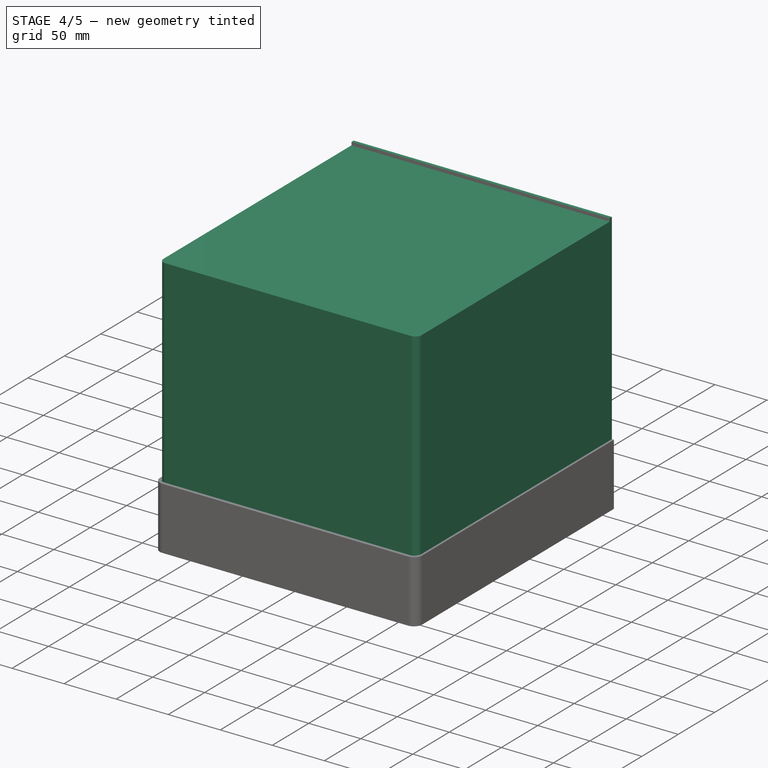
[diagram: stage 4 of 5 — iso view after this stage's code; geometry added in this stage tinted green]
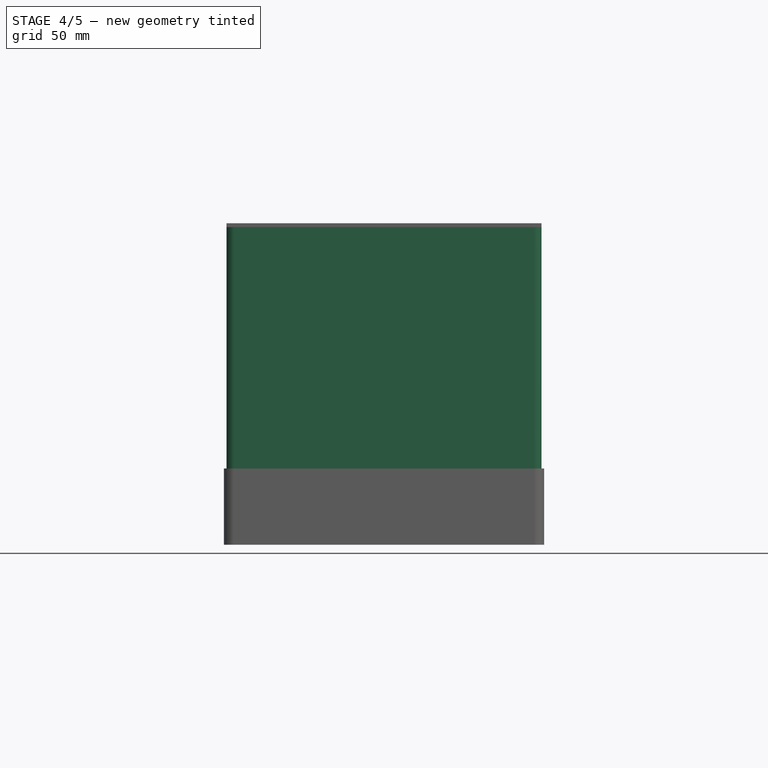
[diagram: stage 4 of 5 — front view after this stage's code; geometry added in this stage tinted green]
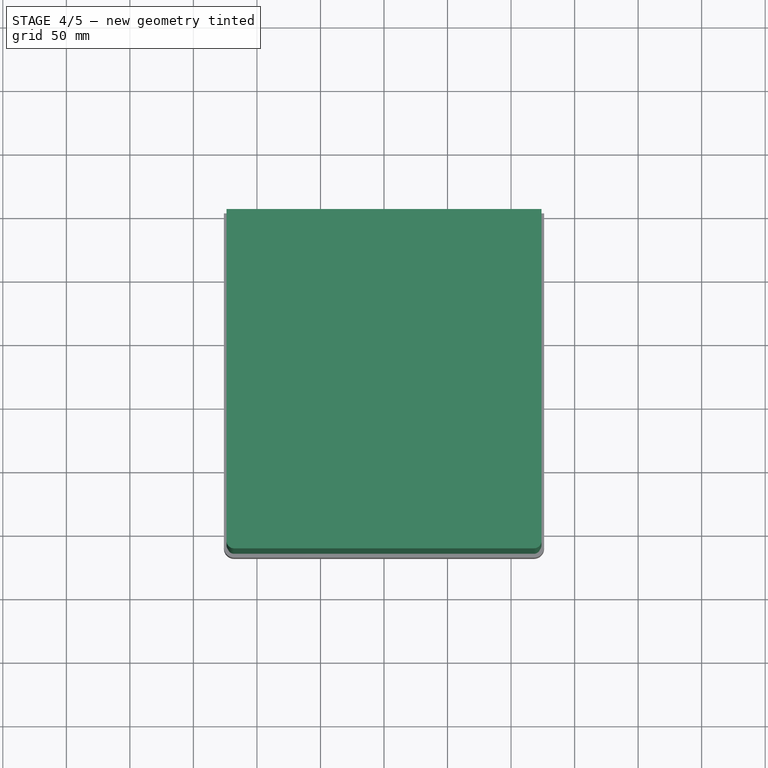
[diagram: stage 4 of 5 — top view after this stage's code; geometry added in this stage tinted green]
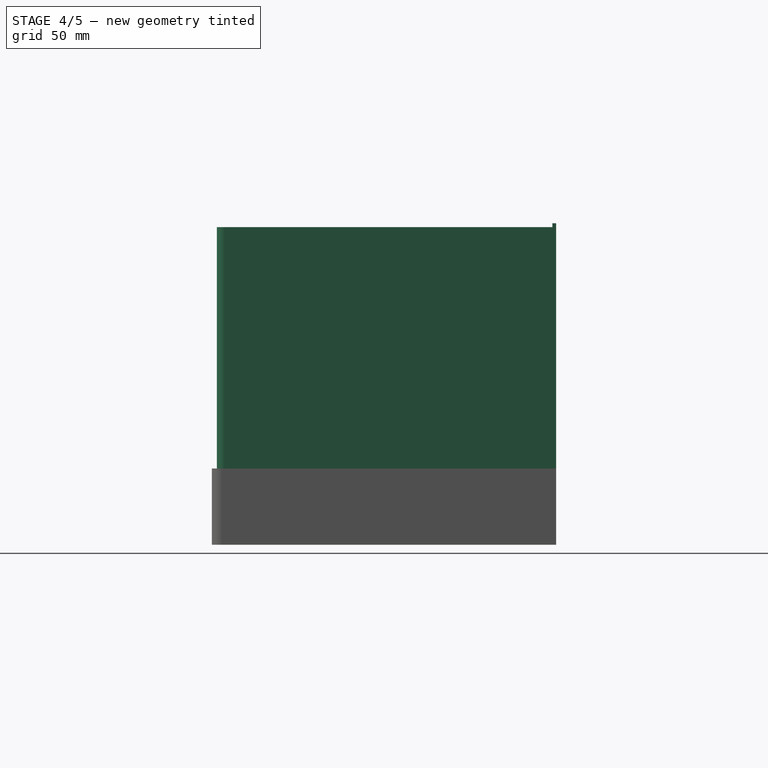
[diagram: stage 4 of 5 — right view after this stage's code; geometry added in this stage tinted green]
FEATURE [PartDesign::Body] Body002  label="Acuario Base001"
  Group = -> [Sketch001,Pad001,Fillet001]
  Origin = -> Origin011
  Tip = -> Fillet001
FEATURE [App::Part] Part002  label="Acuario Base"
  Group = -> [Body002]
  License = CC BY 3.0
  LicenseURL = http://creativecommons.org/licenses/by/3.0/
  Origin = -> Origin004
  expr: Placement.Base.z = 0
FEATURE [Sketcher::SketchObject] Sketch002
  MapMode = 5
  Support = -> [XY_Plane012]
  expr: Constraints[11] = Spreadsheet.acuariofrente
  expr: Constraints[10] = Spreadsheet.acuarioprofunidad
  sketch-geometry (4):
    g0: LineSegment StartX=-124 StartY=0 StartZ=0 EndX=124 EndY=0 EndZ=0
    g1: LineSegment StartX=124 StartY=0 StartZ=0 EndX=124 EndY=-264 EndZ=0
    g2: LineSegment StartX=124 StartY=-264 StartZ=0 EndX=-124 EndY=-264 EndZ=0
    g3: LineSegment StartX=-124 StartY=-264 StartZ=0 EndX=-124 EndY=0 EndZ=0
  constraints (12):
    c: Coincident(g0,g1)
    c: Coincident(g1,g2)
    c: Coincident(g2,g3)
    c: Coincident(g3,g0)
    c: Horizontal(g0)
    c: Horizontal(g2)
    c: Vertical(g1)
    c: Vertical(g3)
    c: PointOnObject(g0,g-1)
    c: Symmetric(g1,g2,g-2)
    c: DistanceY(g3,g3) = 264
    c: DistanceX(g2,g2) = 248
FEATURE [PartDesign::Pad] Pad002
  Length = 250
  Length2 = 100
  Profile = -> Sketch002
  Refine = true
  Type = 0
  expr: Length = Spreadsheet.acuarioalto
FEATURE [PartDesign::Fillet] Fillet002
  Base = -> Pad002 [Edge5,Edge8]
  BaseFeature = -> Pad002
  Radius = 6
  expr: Radius = Spreadsheet.acuarioradio
FEATURE [PartDesign::Body] Body003  label="Acuario Cuerpo001"
  Group = -> [Sketch002,Pad002,Fillet002,Thickness]
  Origin = -> Origin012
  Tip = -> Thickness
FEATURE [App::Part] Part003  label="Acuario Cuerpo"
  Group = -> [Body003]
  License = CC BY 3.0
  LicenseURL = http://creativecommons.org/licenses/by/3.0/
  Origin = -> Origin005
  Placement = pos=(0,0,3) rot=(0,0,1;0rad)
  expr: Placement.Base.z = Spreadsheet.acuarioespesor
FEATURE [Sketcher::SketchObject] Sketch003
  MapMode = 5
  Placement = pos=(0,0,0) rot=(1,0,0;1.5708rad)
  Support = -> [XZ_Plane014]
  expr: Constraints[10] = Spreadsheet.acuariofrente
  expr: Constraints[9] = Spreadsheet.acuarioalto + Spreadsheet.acuarioespesor
  sketch-geometry (4):
    g0: LineSegment StartX=-124 StartY=0 StartZ=0 EndX=124 EndY=0 EndZ=0
    g1: LineSegment StartX=124 StartY=0 StartZ=0 EndX=124 EndY=253 EndZ=0
    g2: LineSegment StartX=124 StartY=253 StartZ=0 EndX=-124 EndY=253 EndZ=0
    g3: LineSegment StartX=-124 StartY=253 StartZ=0 EndX=-124 EndY=0 EndZ=0
  constraints (12):
    c: Coincident(g0,g1)
    c: Coincident(g1,g2)
    c: Coincident(g2,g3)
    c: Coincident(g3,g0)
    c: Horizontal(g0)
    c: Horizontal(g2)
    c: Vertical(g1)
    c: Vertical(g3)
    c: PointOnObject(g0,g-1)
    c: DistanceY(g1,g1) = 253
    c: DistanceX(g2,g2) = 248
    c: Symmetric(g2,g1,g-2)
FEATURE [PartDesign::Pad] Pad003
  Length = 3
  Length2 = 100
  Placement = pos=(0,0,0) rot=(1,0,0;1.5708rad)
  Profile = -> Sketch003
  Refine = true
  Reversed = true
  Type = 0
  expr: Length = Spreadsheet.acuarioespesor
FEATURE [PartDesign::Thickness] Thickness001
  Base = -> Fillet003 [Face5,Face4,Face2]
  BaseFeature = -> Fillet003
  Join = 0
  Mode = 0
  Reversed = true
  Value = 3
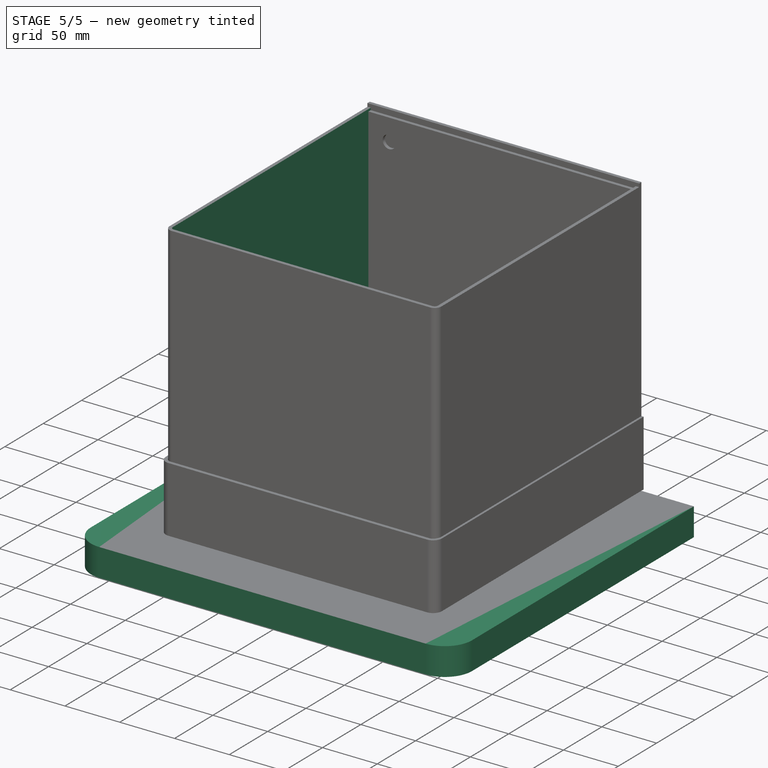
[diagram: stage 5 of 5 — iso view after this stage's code; geometry added in this stage tinted green]
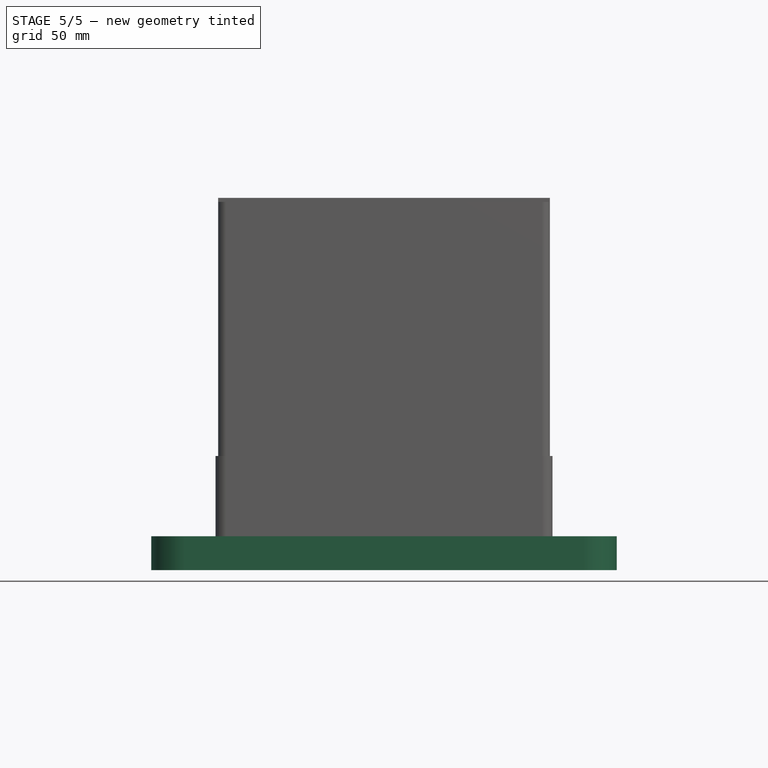
[diagram: stage 5 of 5 — front view after this stage's code; geometry added in this stage tinted green]
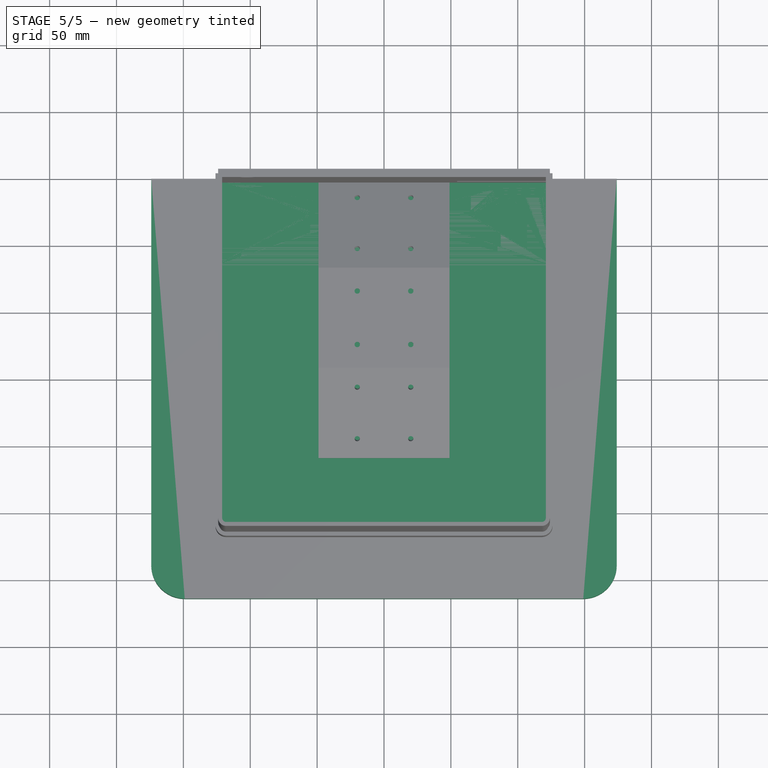
[diagram: stage 5 of 5 — top view after this stage's code; geometry added in this stage tinted green]
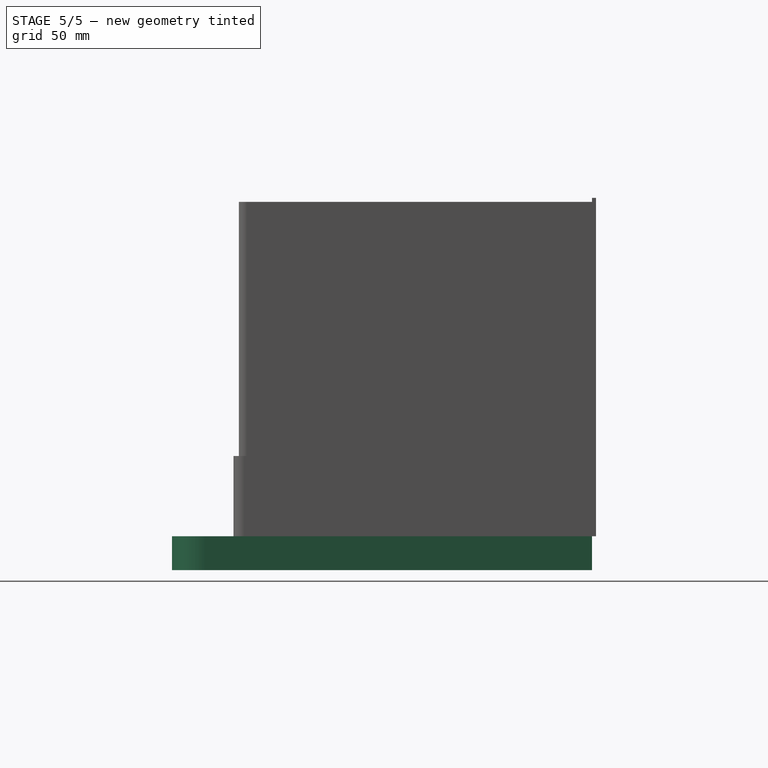
[diagram: stage 5 of 5 — right view after this stage's code; geometry added in this stage tinted green]
FEATURE [Spreadsheet::Sheet] Spreadsheet
  cells = A2=ACUARIO; D2=SOPORTES; A3=Espesor; B3(acuarioespesor)=3; D3=Espesor; E3(soportesespesor)=25.399999999999999; A4=Frente; B4(acuariofrente)=248; D4=Frente; E4(soportesfrente)==Spreadsheet.acuariofrente + 100; A5=Profundidad; B5(acuarioprofunidad)=264; D5=Profundidad; E5(soportesprofundidad)==Spreadsheet.acuarioprofunidad + 50; A6=Alto; B6(acuarioalto)=250; A7=Radio; B7(acuarioradio)=6; A8=Filtro; B8(acuariofiltro)=59; A10=TAPA; E10=ILUMINACION; H10=FILTRO LUZ; A11=Espesor; B11(tapaespesor)=3; C11=Tolerancia; D11(tapatolerancia)=2; E11=Ancho Disipador; F11(luzancho)=98; H11=Ancho Disipador; I11(filtroancho)=40; A12=Frente; B12(tapafrente)==Spreadsheet.acuariofrente + 2 * Spreadsheet.tapatolerancia; E12=Largo Disipador; F12(luzlargo)=93; H12=Largo Disipador; I12(filtrolargo)=50; A13=Profunidad; B13(tapaprofundidad)==Spreadsheet.acuarioprofunidad + 2 * Spreadsheet.tapatolerancia; E13=Distancia Barrenos; F13(luzdistanciabarrenos)=40; H13=Distancia Barrenos; I13(filtrodistanciabarrenos)=40; A14=Alto; B14(tapaalto)=60; C14=Pestaña; D14(tapapestana)=12; E14=ø Barrenos; F14(luzdiabarrenos)=4; H14=ø Barrenos; I14(filtrodiabarrenos)=4; A15=Radio; B15(taparadio)==Spreadsheet.acuarioradio + Spreadsheet.tapatolerancia
FEATURE [App::DocumentObjectGroup] Group  label="Tablas"
  Group = -> [Spreadsheet]
FEATURE [App::DocumentObjectGroup] Group004  label="Iluminacion"
FEATURE [App::DocumentObjectGroup] Group005  label="Iluminacion filtro"
FEATURE [App::DocumentObjectGroup] Group006  label="Tablero electrico"
FEATURE [App::DocumentObjectGroup] Group007  label="Planos"
FEATURE [PartDesign::Body] Body  label="Soporte Mensula001"
  Origin = -> Origin002
FEATURE [App::Part] Part001  label="Mensula"
  Group = -> [Body]
  License = CC BY 3.0
  LicenseURL = http://creativecommons.org/licenses/by/3.0/
  Origin = -> Origin001
FEATURE [Sketcher::SketchObject] Sketch
  MapMode = 5
  Support = -> [XY_Plane003]
  expr: Constraints[11] = Spreadsheet.soportesfrente
  expr: Constraints[10] = Spreadsheet.soportesprofundidad
  sketch-geometry (4):
    g0: LineSegment StartX=-174 StartY=0 StartZ=0 EndX=174 EndY=0 EndZ=0
    g1: LineSegment StartX=174 StartY=0 StartZ=0 EndX=174 EndY=-314 EndZ=0
    g2: LineSegment StartX=174 StartY=-314 StartZ=0 EndX=-174 EndY=-314 EndZ=0
    g3: LineSegment StartX=-174 StartY=-314 StartZ=0 EndX=-174 EndY=0 EndZ=0
  constraints (12):
    c: Coincident(g0,g1)
    c: Coincident(g1,g2)
    c: Coincident(g2,g3)
    c: Coincident(g3,g0)
    c: Horizontal(g0)
    c: Horizontal(g2)
    c: Vertical(g1)
    c: Vertical(g3)
    c: PointOnObject(g0,g-1)
    c: Symmetric(g1,g2,g-2)
    c: DistanceY(g3,g3) = 314
    c: DistanceX(g2,g2) = 348
FEATURE [PartDesign::Pad] Pad
  Length = 25.4
  Length2 = 100
  Profile = -> Sketch
  Refine = true
  Reversed = true
  Type = 0
  expr: Length = Spreadsheet.soportesespesor
FEATURE [PartDesign::Fillet] Fillet
  Base = -> Pad [Edge5,Edge8]
  BaseFeature = -> Pad
  Radius = 25
FEATURE [PartDesign::Body] Body001  label="Soporte base001"
  Group = -> [Sketch,Pad,Fillet]
  Origin = -> Origin003
  Tip = -> Fillet
FEATURE [App::Part] Part  label="Soporte base"
  Group = -> [Body001]
  License = CC BY 3.0
  LicenseURL = http://creativecommons.org/licenses/by/3.0/
  Origin = -> Origin
  Placement = pos=(0,3,0) rot=(0,0,1;0rad)
  expr: Placement.Base.y = Spreadsheet.acuarioespesor
FEATURE [App::DocumentObjectGroup] Group001  label="Soportes"
  Group = -> [Part,Part001]
FEATURE [PartDesign::Body] Body006  label="Acuario Separador filtro011"
  Origin = -> Origin015
FEATURE [App::Part] Part006  label="Acuario Separador filtro010"
  Group = -> [Body006]
  License = CC BY 3.0
  LicenseURL = http://creativecommons.org/licenses/by/3.0/
  Origin = -> Origin008
FEATURE [PartDesign::Body] Body007  label="Acuario Separador filtro021"
  Origin = -> Origin016
FEATURE [App::Part] Part007  label="Acuario Separador filtro020"
  Group = -> [Body007]
  License = CC BY 3.0
  LicenseURL = http://creativecommons.org/licenses/by/3.0/
  Origin = -> Origin009
FEATURE [PartDesign::Body] Body008  label="Acuario Separador filtro031"
  Origin = -> Origin017
FEATURE [App::Part] Part008  label="Acuario Separador filtro030"
  Group = -> [Body008]
  License = CC BY 3.0
  LicenseURL = http://creativecommons.org/licenses/by/3.0/
  Origin = -> Origin010
FEATURE [Sketcher::SketchObject] Sketch001
  MapMode = 5
  Support = -> [XY_Plane011]
  expr: Constraints[10] = Spreadsheet.acuariofrente
  expr: Constraints[9] = Spreadsheet.acuarioprofunidad
  sketch-geometry (4):
    g0: LineSegment StartX=-124 StartY=0 StartZ=0 EndX=124 EndY=0 EndZ=0
    g1: LineSegment StartX=124 StartY=0 StartZ=0 EndX=124 EndY=-264 EndZ=0
    g2: LineSegment StartX=124 StartY=-264 StartZ=0 EndX=-124 EndY=-264 EndZ=0
    g3: LineSegment StartX=-124 StartY=-264 StartZ=0 EndX=-124 EndY=0 EndZ=0
  constraints (12):
    c: Coincident(g0,g1)
    c: Coincident(g1,g2)
    c: Coincident(g2,g3)
    c: Coincident(g3,g0)
    c: Horizontal(g0)
    c: Horizontal(g2)
    c: Vertical(g1)
    c: Vertical(g3)
    c: PointOnObject(g0,g-1)
    c: DistanceY(g3,g3) = 264
    c: DistanceX(g0,g0) = 248
    c: Symmetric(g1,g2,g-2)
FEATURE [PartDesign::Pad] Pad001
  Length = 3
  Length2 = 100
  Profile = -> Sketch001
  Refine = true
  Type = 0
  expr: Length = Spreadsheet.acuarioespesor
FEATURE [PartDesign::Fillet] Fillet001
  Base = -> Pad001 [Edge5,Edge8]
  BaseFeature = -> Pad001
  Radius = 6
  expr: Radius = Spreadsheet.acuarioradio
FEATURE [PartDesign::Thickness] Thickness
  Base = -> Fillet002 [Face5,Face4,Face2]
  BaseFeature = -> Fillet002
  Join = 0
  Mode = 0
  Reversed = true
  Value = 3
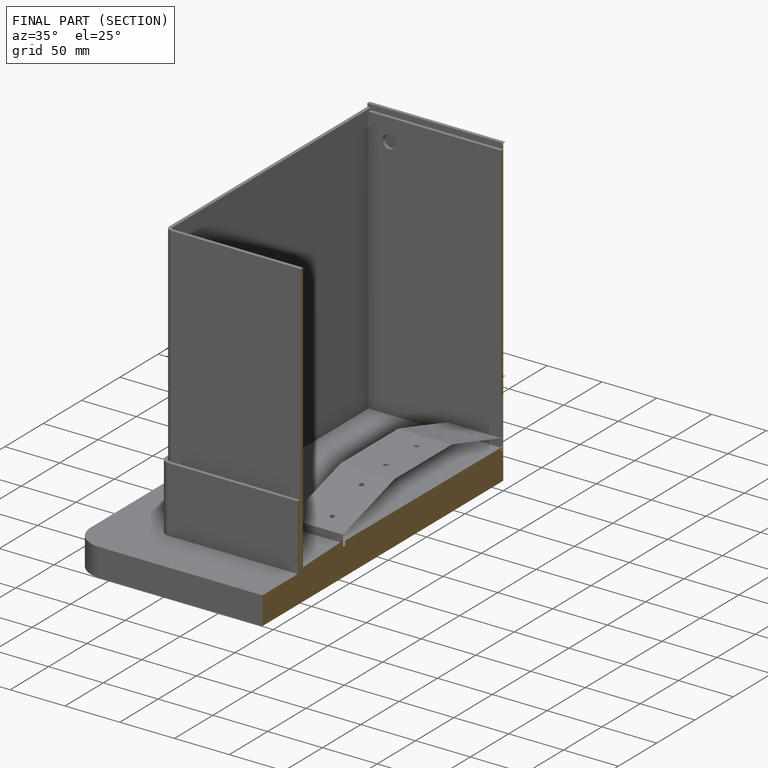
[diagram: finished part — half-section view (interior)]
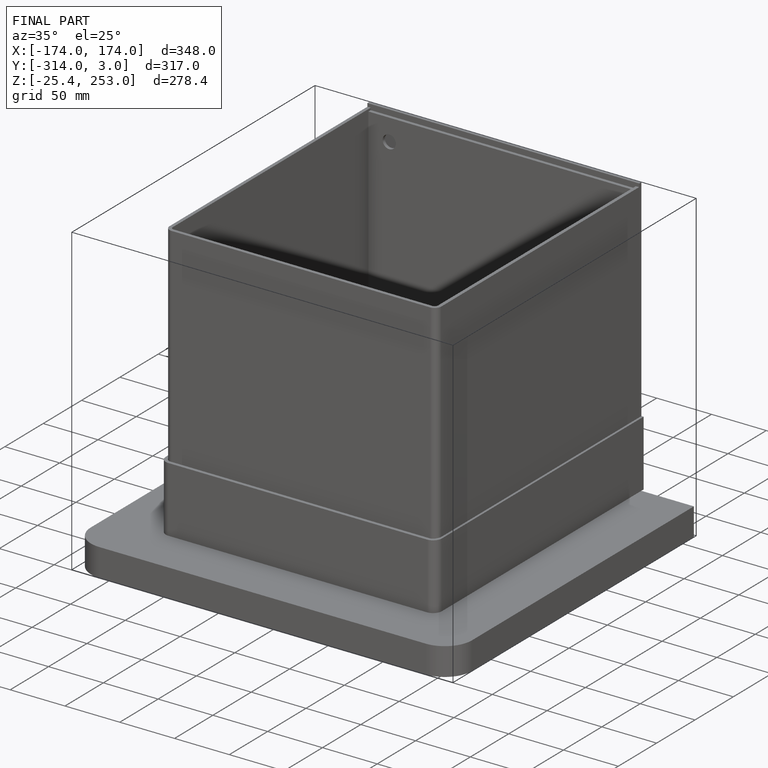
[diagram: finished part — iso view with bounding-box wireframe]
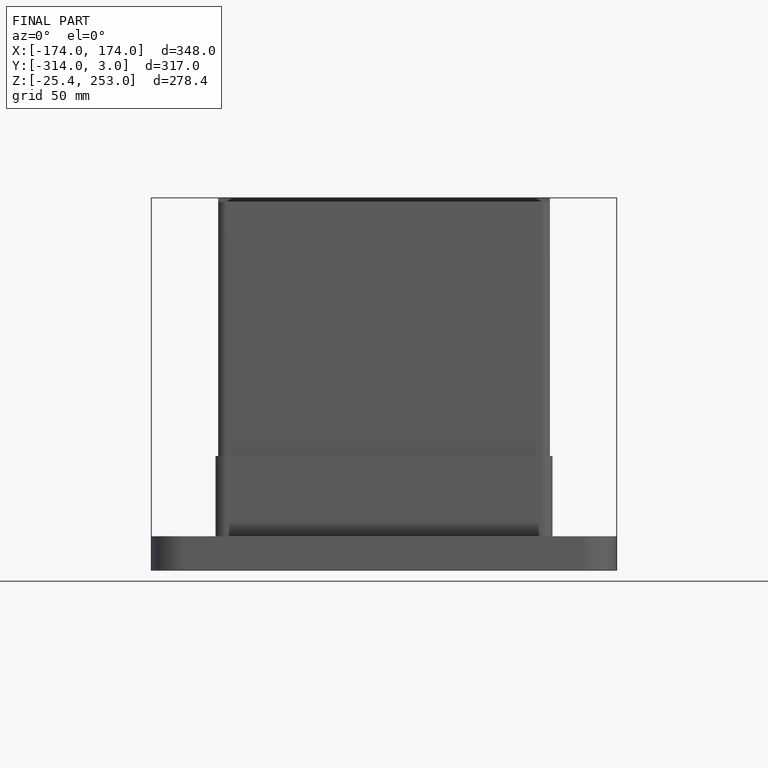
[diagram: finished part — front view with bounding-box wireframe]
